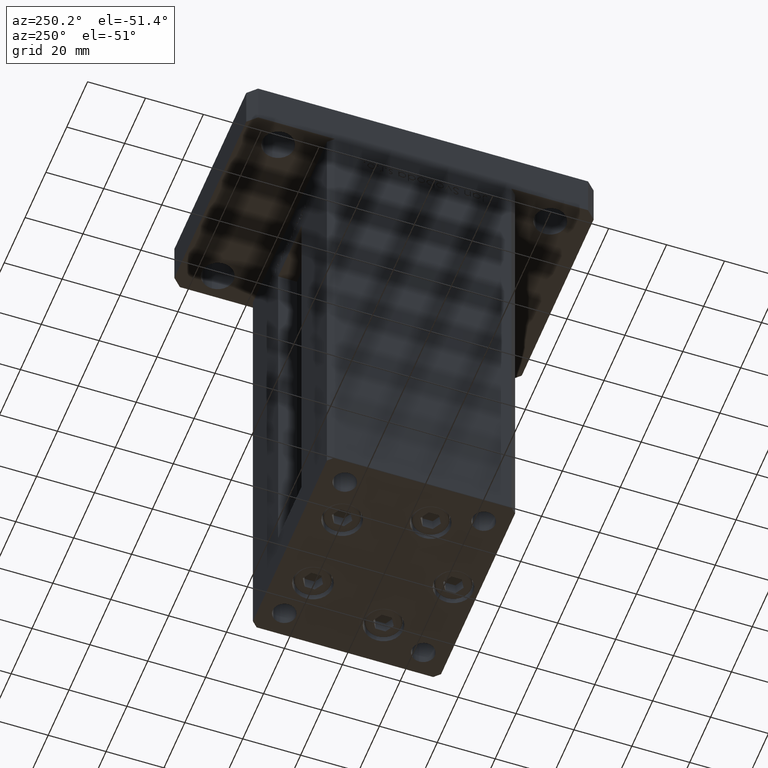
[diagram: clean part render]
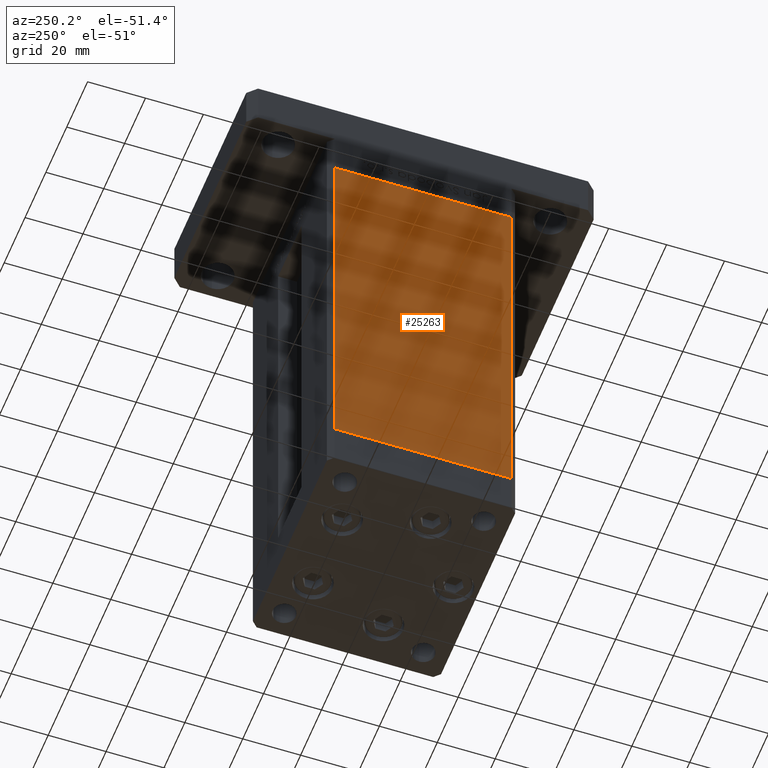
[diagram: same view with one face highlighted and labeled with its STEP entity id]
A machine part, auxiliary view. The second image highlights one B-rep face of the part: STEP entity #25263.
In plain terms, the highlighted planar face has unit normal (1, 0, 0).
Its self-contained STEP definition (entity closure, byte-faithful):
#744 = CARTESIAN_POINT ( 'NONE',  ( -37.50000000000000711, 30.50000000000000000, 0.000000000000000000 ) ) ;
#1484 = ORIENTED_EDGE ( 'NONE', *, *, #14445, .T. ) ;
#3482 = VERTEX_POINT ( 'NONE', #26230 ) ;
#4226 = CARTESIAN_POINT ( 'NONE',  ( -37.50000000000000711, 30.50000000000000000, 0.000000000000000000 ) ) ;
#6353 = CARTESIAN_POINT ( 'NONE',  ( -37.50000000000000711, 30.50000000000000000, 136.0000000000000000 ) ) ;
#7901 = VECTOR ( 'NONE', #22889, 1000.000000000000000 ) ;
#9697 = VECTOR ( 'NONE', #19070, 1000.000000000000000 ) ;
#10124 = VERTEX_POINT ( 'NONE', #19731 ) ;
#10860 = AXIS2_PLACEMENT_3D ( 'NONE', #45231, #15118, #44163 ) ;
#12554 = EDGE_CURVE ( 'NONE', #48374, #10124, #27758, .T. ) ;
#13166 = ORIENTED_EDGE ( 'NONE', *, *, #12554, .F. ) ;
#14445 = EDGE_CURVE ( 'NONE', #48374, #30526, #47602, .T. ) ;
#15118 = DIRECTION ( 'NONE',  ( 1.000000000000000000, 2.275047181608927644E-16, -0.000000000000000000 ) ) ;
#16671 = ORIENTED_EDGE ( 'NONE', *, *, #49873, .F. ) ;
#16728 = LINE ( 'NONE', #744, #39257 ) ;
#18472 = DIRECTION ( 'NONE',  ( -0.000000000000000000, -0.000000000000000000, -1.000000000000000000 ) ) ;
#19070 = DIRECTION ( 'NONE',  ( 2.275047181608927644E-16, -1.000000000000000000, 0.000000000000000000 ) ) ;
#19731 = CARTESIAN_POINT ( 'NONE',  ( -37.49999999999999289, -30.50000000000000000, 136.0000000000000000 ) ) ;
#20262 = FACE_OUTER_BOUND ( 'NONE', #21032, .T. ) ;
#21032 = EDGE_LOOP ( 'NONE', ( #50110, #16671, #13166, #1484 ) ) ;
#22889 = DIRECTION ( 'NONE',  ( -0.000000000000000000, -0.000000000000000000, -1.000000000000000000 ) ) ;
#25263 = ADVANCED_FACE ( 'NONE', ( #20262 ), #53090, .F. ) ;
#26230 = CARTESIAN_POINT ( 'NONE',  ( -37.49999999999999289, -30.50000000000000000, 0.000000000000000000 ) ) ;
#27758 = LINE ( 'NONE', #39960, #9697 ) ;
#29500 = DIRECTION ( 'NONE',  ( 2.275047181608927644E-16, -1.000000000000000000, 0.000000000000000000 ) ) ;
#30526 = VERTEX_POINT ( 'NONE', #4226 ) ;
#39257 = VECTOR ( 'NONE', #29500, 1000.000000000000000 ) ;
#39960 = CARTESIAN_POINT ( 'NONE',  ( -37.50000000000000711, 30.50000000000000000, 136.0000000000000000 ) ) ;
#41132 = VECTOR ( 'NONE', #18472, 1000.000000000000000 ) ;
#44163 = DIRECTION ( 'NONE',  ( -2.275047181608927644E-16, 1.000000000000000000, 0.000000000000000000 ) ) ;
#44233 = LINE ( 'NONE', #48571, #41132 ) ;
#45231 = CARTESIAN_POINT ( 'NONE',  ( -37.50000000000000711, 30.50000000000000000, 136.0000000000000000 ) ) ;
#47602 = LINE ( 'NONE', #6353, #7901 ) ;
#48115 = EDGE_CURVE ( 'NONE', #30526, #3482, #16728, .T. ) ;
#48374 = VERTEX_POINT ( 'NONE', #52217 ) ;
#48571 = CARTESIAN_POINT ( 'NONE',  ( -37.49999999999999289, -30.50000000000000000, 136.0000000000000000 ) ) ;
#49873 = EDGE_CURVE ( 'NONE', #10124, #3482, #44233, .T. ) ;
#50110 = ORIENTED_EDGE ( 'NONE', *, *, #48115, .T. ) ;
#52217 = CARTESIAN_POINT ( 'NONE',  ( -37.50000000000000711, 30.50000000000000000, 136.0000000000000000 ) ) ;
#53090 = PLANE ( 'NONE',  #10860 ) ;